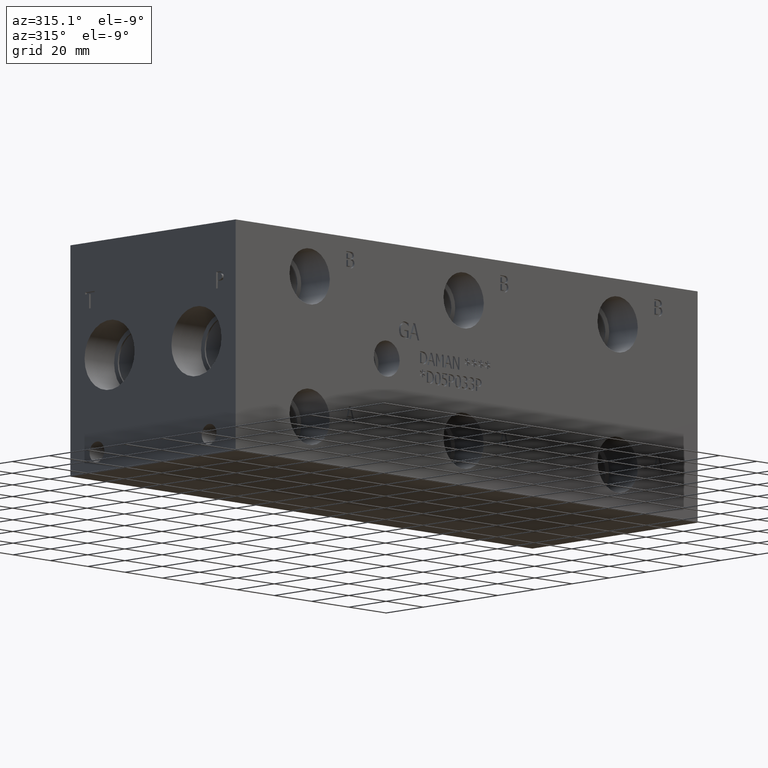
[diagram: clean part render]
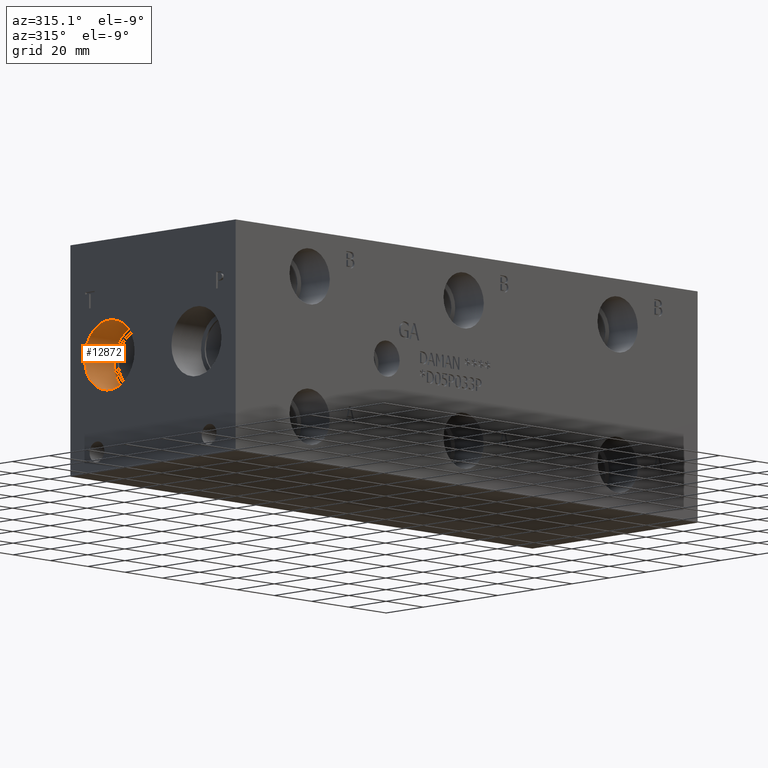
[diagram: same view with one face highlighted and labeled with its STEP entity id]
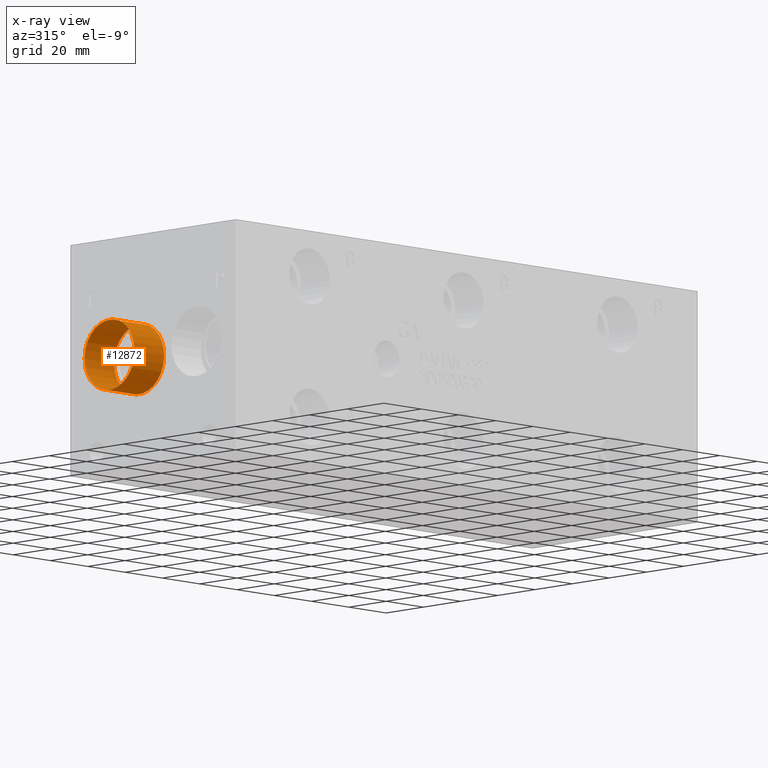
[diagram: x-ray of the same camera — body ghosted, the highlighted face saturated]
A machine part, auxiliary view. The second image highlights one B-rep face of the part: STEP entity #12872.
The next image is the same camera in x-ray: the body ghosted, the highlighted face saturated — about 0% of this face is hidden behind the body in this view.
In plain terms, the highlighted cylindrical surface (bore or boss wall) has radius 13.462 mm, axis along (-1, 0, 0).
Its self-contained STEP definition (entity closure, byte-faithful):
#16=CYLINDRICAL_SURFACE('',#13413,13.462);
#318=CIRCLE('',#13333,13.462);
#319=CIRCLE('',#13334,13.462);
#335=CIRCLE('',#13410,13.462);
#336=CIRCLE('',#13411,13.462);
#1543=FACE_OUTER_BOUND('',#2276,.T.);
#2276=EDGE_LOOP('',(#10785,#10786,#10787,#10788,#10789,#10790));
#3547=LINE('',#21742,#4740);
#4740=VECTOR('',#15626,13.462);
#5709=VERTEX_POINT('',#21041);
#5710=VERTEX_POINT('',#21042);
#5846=VERTEX_POINT('',#21735);
#5847=VERTEX_POINT('',#21736);
#7361=EDGE_CURVE('',#5709,#5710,#318,.T.);
#7362=EDGE_CURVE('',#5710,#5709,#319,.T.);
#7568=EDGE_CURVE('',#5846,#5847,#335,.T.);
#7569=EDGE_CURVE('',#5847,#5846,#336,.T.);
#7571=EDGE_CURVE('',#5710,#5847,#3547,.T.);
#10785=ORIENTED_EDGE('',*,*,#7361,.F.);
#10786=ORIENTED_EDGE('',*,*,#7362,.F.);
#10787=ORIENTED_EDGE('',*,*,#7571,.T.);
#10788=ORIENTED_EDGE('',*,*,#7568,.F.);
#10789=ORIENTED_EDGE('',*,*,#7569,.F.);
#10790=ORIENTED_EDGE('',*,*,#7571,.F.);
#12872=ADVANCED_FACE('',(#1543),#16,.F.);
#13333=AXIS2_PLACEMENT_3D('',#21043,#15312,#15313);
#13334=AXIS2_PLACEMENT_3D('',#21044,#15314,#15315);
#13410=AXIS2_PLACEMENT_3D('',#21737,#15618,#15619);
#13411=AXIS2_PLACEMENT_3D('',#21738,#15620,#15621);
#13413=AXIS2_PLACEMENT_3D('',#21741,#15624,#15625);
#15312=DIRECTION('center_axis',(1.,0.,0.));
#15313=DIRECTION('ref_axis',(0.,1.,0.));
#15314=DIRECTION('center_axis',(1.,0.,0.));
#15315=DIRECTION('ref_axis',(0.,1.,0.));
#15618=DIRECTION('center_axis',(-1.,0.,0.));
#15619=DIRECTION('ref_axis',(0.,1.,0.));
#15620=DIRECTION('center_axis',(-1.,0.,0.));
#15621=DIRECTION('ref_axis',(0.,1.,0.));
#15624=DIRECTION('center_axis',(-1.,0.,0.));
#15625=DIRECTION('ref_axis',(0.,1.,0.));
#15626=DIRECTION('',(1.,0.,0.));
#21041=CARTESIAN_POINT('',(0.,81.28,44.45));
#21042=CARTESIAN_POINT('',(1.11022302462516E-15,54.356,44.45));
#21043=CARTESIAN_POINT('Origin',(0.,67.818,44.45));
#21044=CARTESIAN_POINT('Origin',(0.,67.818,44.45));
#21735=CARTESIAN_POINT('',(15.8496,81.28,44.45));
#21736=CARTESIAN_POINT('',(15.8496,54.356,44.45));
#21737=CARTESIAN_POINT('Origin',(15.8496,67.818,44.45));
#21738=CARTESIAN_POINT('Origin',(15.8496,67.818,44.45));
#21741=CARTESIAN_POINT('Origin',(7.9248,67.818,44.45));
#21742=CARTESIAN_POINT('',(7.9248,54.356,44.45));